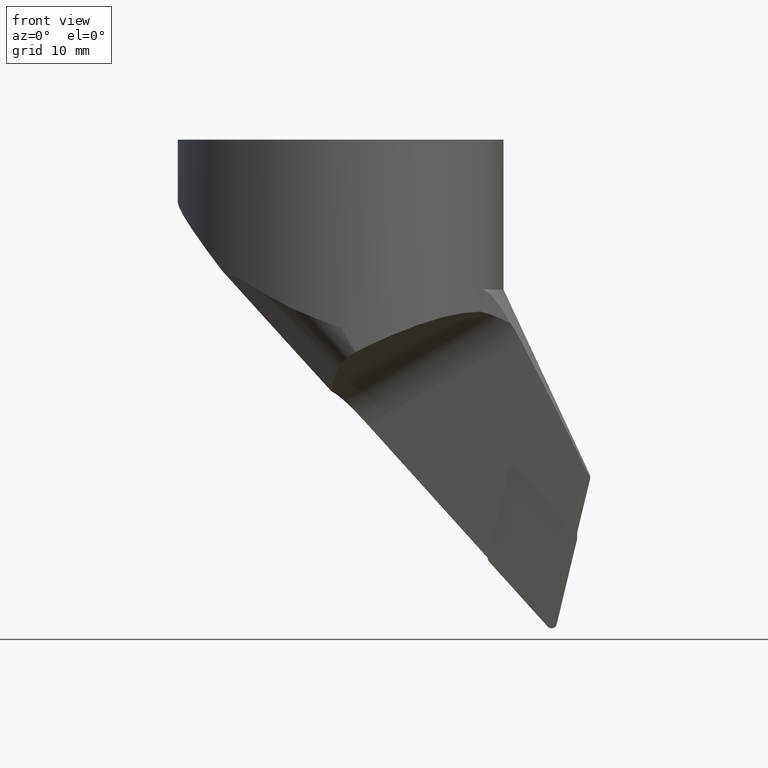
[diagram: clean part render]
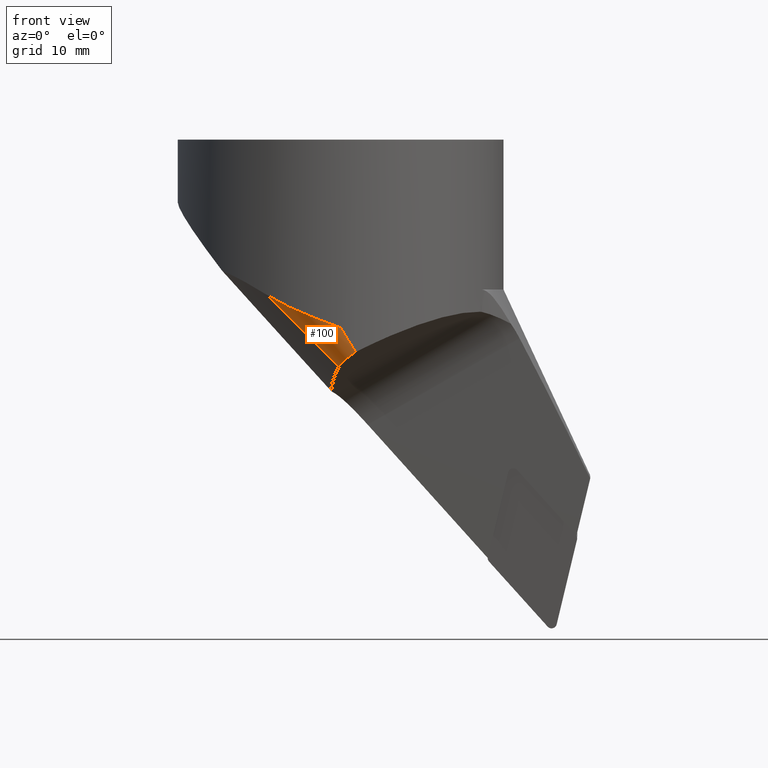
[diagram: same view with one face highlighted and labeled with its STEP entity id]
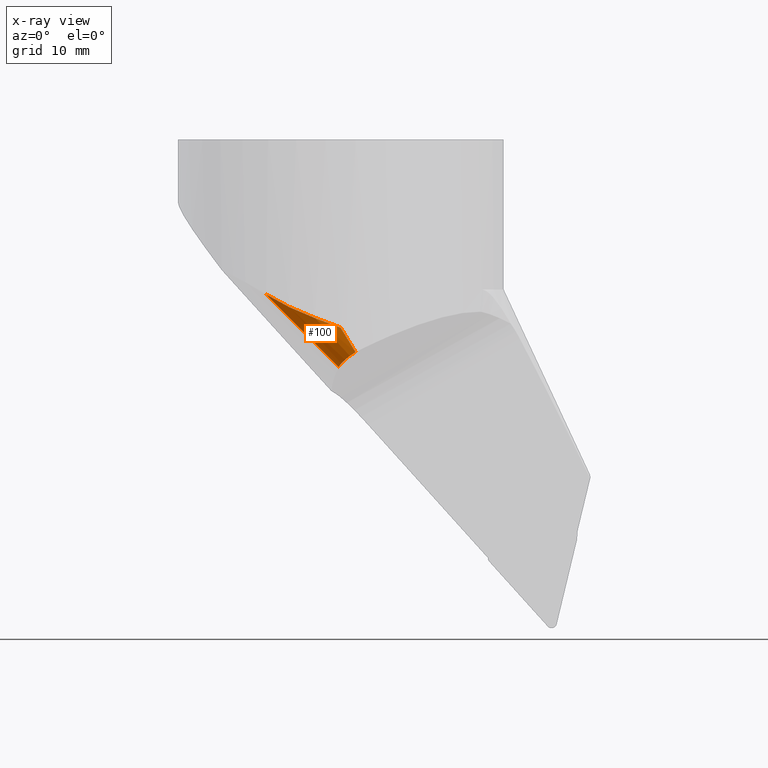
[diagram: x-ray of the same camera — body ghosted, the highlighted face saturated]
A machine part, front view. The second image highlights one B-rep face of the part: STEP entity #100.
The next image is the same camera in x-ray: the body ghosted, the highlighted face saturated — about 0% of this face is hidden behind the body in this view.
In plain terms, the highlighted cylindrical surface (edge-blend (fillet) strip) has radius 5 mm, axis along (-0.7071, -0, 0.7071).
Its self-contained STEP definition (entity closure, byte-faithful):
#100=ADVANCED_FACE('',(#156),#157,.T.);
#156=FACE_OUTER_BOUND('',#216,.T.);
#157=CYLINDRICAL_SURFACE('',#217,5.0);
#216=EDGE_LOOP('',(#447,#448,#449,#450));
#217=AXIS2_PLACEMENT_3D('',#451,#452,#453);
#447=ORIENTED_EDGE('',*,*,#558,.F.);
#448=ORIENTED_EDGE('',*,*,#549,.T.);
#449=ORIENTED_EDGE('',*,*,#548,.T.);
#450=ORIENTED_EDGE('',*,*,#560,.F.);
#451=CARTESIAN_POINT('',(1.67656059626177,-20.0,-30.5403391575135));
#452=DIRECTION('',(-0.707106781186553,-6.03961325396086E-016,0.707106781186542));
#453=DIRECTION('',(0.60092521257733,-0.527046276694722,0.600925212577339));
#548=EDGE_CURVE('',#678,#676,#679,.T.);
#549=EDGE_CURVE('',#680,#678,#681,.T.);
#558=EDGE_CURVE('',#680,#693,#694,.T.);
#560=EDGE_CURVE('',#693,#676,#696,.T.);
#676=VERTEX_POINT('',#936);
#678=VERTEX_POINT('',#949);
#679=B_SPLINE_CURVE_WITH_KNOTS('',3,(#950,#951,#952,#953,#954,#955,#956,#957,#958,#959,#960,#961,#962,#963),.UNSPECIFIED.,.F.,.F.,(4,2,2,2,2,2,4),(8.29895309466273E-014,2.15070872064106,4.30141744128212,6.45212616192318,8.60283488256424,10.7535436032053,12.3080953979299),.UNSPECIFIED.);
#680=VERTEX_POINT('',#964);
#681=CIRCLE('',#965,91.0170571207383);
#693=VERTEX_POINT('',#1012);
#694=ELLIPSE('',#1013,5.45306453511873,5.0);
#696=LINE('',#1015,#1016);
#936=CARTESIAN_POINT('',(-11.4530711822711,-22.2222222222223,-23.7450152961981));
#949=CARTESIAN_POINT('',(1.350031E-013,-25.0,-28.8637785612519));
#950=CARTESIAN_POINT('',(1.207923E-013,-25.0,-28.8637785612519));
#951=CARTESIAN_POINT('',(-0.67289204818001,-25.0,-28.6164608114048));
#952=CARTESIAN_POINT('',(-1.35919642380671,-24.9726787978702,-28.3642815487412));
#953=CARTESIAN_POINT('',(-2.74318462171552,-24.858741709249,-27.8466906579445));
#954=CARTESIAN_POINT('',(-3.44085816805148,-24.7721205777085,-27.5812527079105));
#955=CARTESIAN_POINT('',(-4.83203458203651,-24.5387225051829,-27.0325203250765));
#956=CARTESIAN_POINT('',(-5.5255956217681,-24.3919336225876,-26.7491732644659));
#957=CARTESIAN_POINT('',(-6.89361580675267,-24.0411458530528,-26.1595895966907));
#958=CARTESIAN_POINT('',(-7.56806417181195,-23.8371520256875,-25.8533249661456));
#959=CARTESIAN_POINT('',(-8.88390300031495,-23.3786586331083,-25.213289091689));
#960=CARTESIAN_POINT('',(-9.52590598265664,-23.1239495889089,-24.8791892000879));
#961=CARTESIAN_POINT('',(-10.5937422621136,-22.6497884394792,-24.276236004799));
#962=CARTESIAN_POINT('',(-11.030190598092,-22.4401698866714,-24.0149736828617));
#963=CARTESIAN_POINT('',(-11.4530711822711,-22.2222222222223,-23.7450152961981));
#964=CARTESIAN_POINT('',(2.29017089198561,-24.8948813470861,-32.5962646739483));
#965=AXIS2_PLACEMENT_3D('',#1143,#1144,#1145);
#1012=CARTESIAN_POINT('',(-0.292154294190574,-22.2222222222223,-34.9059321842786));
#1013=AXIS2_PLACEMENT_3D('',#1158,#1159,#1160);
#1015=CARTESIAN_POINT('',(-0.292154294190574,-22.2222222222223,-34.9059321842786));
#1016=VECTOR('',#1164,15.7839200316424);
#1143=CARTESIAN_POINT('',(3.44060725055552,65.927720234469,-26.7622073325491));
#1144=DIRECTION('',(-0.852063948318724,0.0442957663325051,-0.521560076175816));
#1145=DIRECTION('',(-0.012639788573298,-0.997863526405547,-0.0640985055544051));
#1158=CARTESIAN_POINT('',(4.32004352612728,-20.0,-33.183822087379));
#1159=DIRECTION('',(0.454084151620467,-0.289450672272155,-0.842630340996761));
#1160=DIRECTION('',(-0.728548405899364,-0.665032266388959,-0.164162434567294));
#1164=DIRECTION('',(-0.707106781186548,0.0,0.707106781186547));